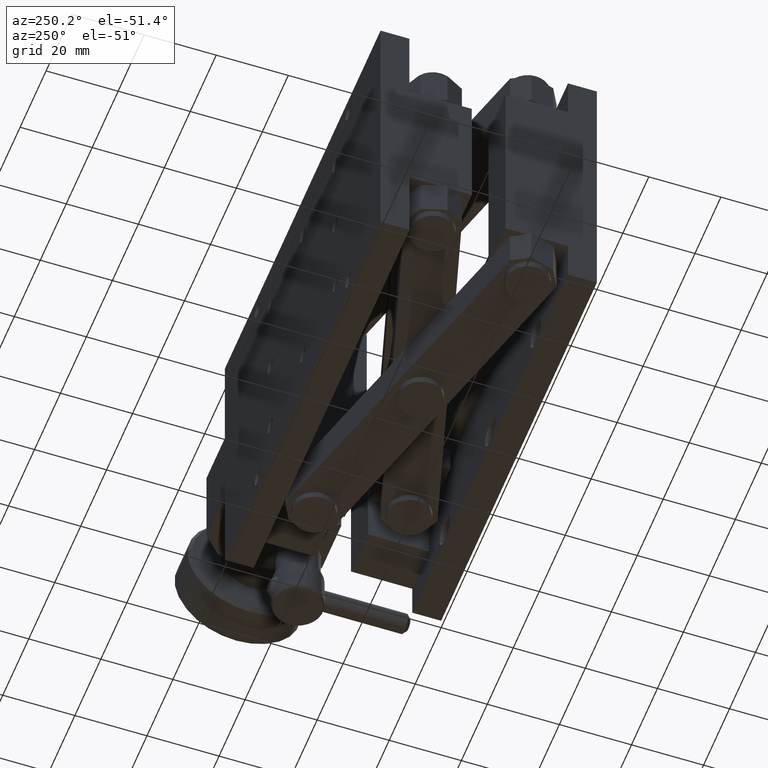
[diagram: clean part render]
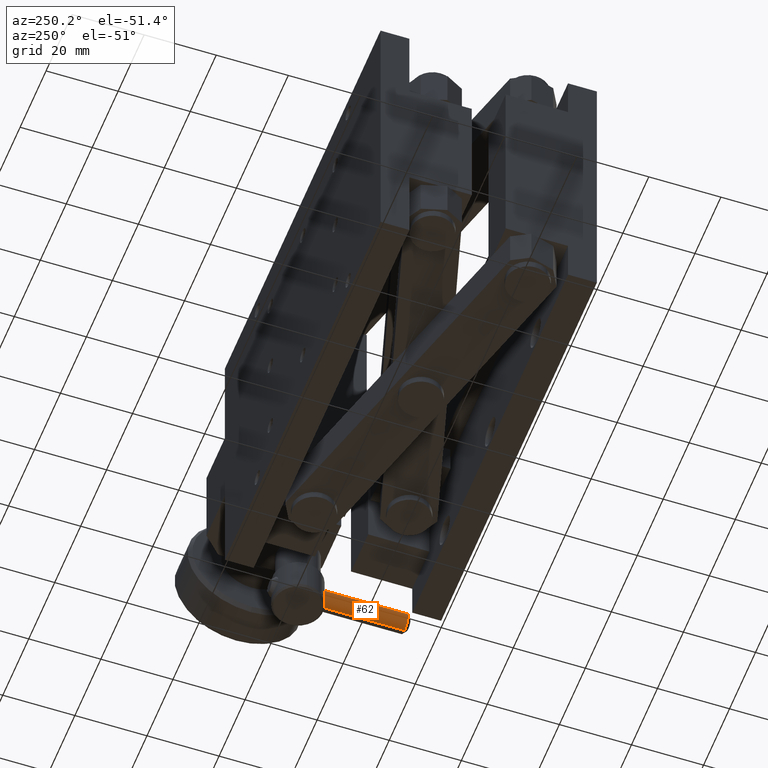
[diagram: same view with one face highlighted and labeled with its STEP entity id]
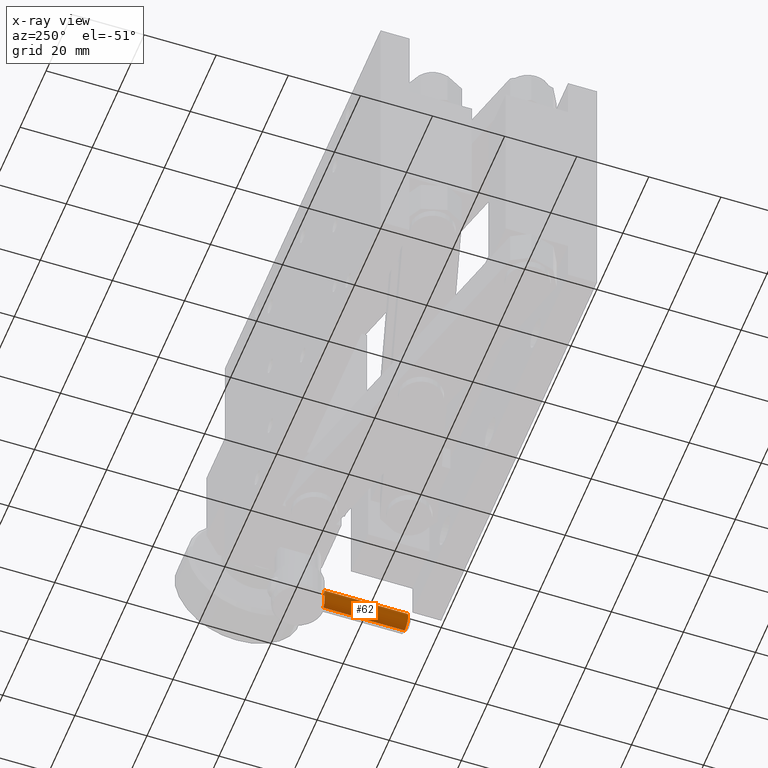
[diagram: x-ray of the same camera — body ghosted, the highlighted face saturated]
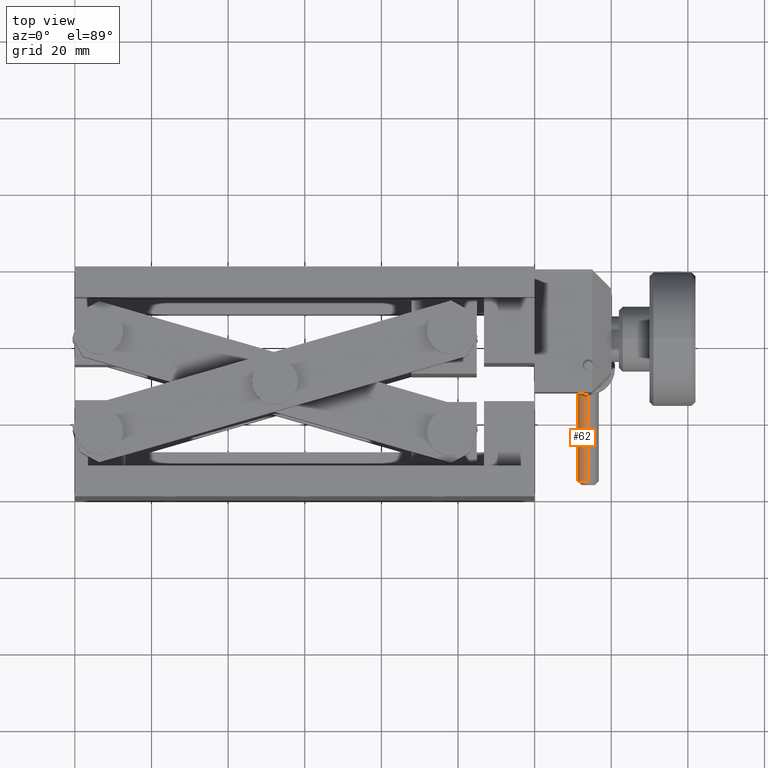
[diagram: same view with one face highlighted and labeled with its STEP entity id]
A machine part, auxiliary view. The second image highlights one B-rep face of the part: STEP entity #62.
The next image is the same camera in x-ray: the body ghosted, the highlighted face saturated — about 0% of this face is hidden behind the body in this view.
A second angle (top view) of the same face is appended — the face is thin or edge-on in the first view.
In plain terms, the highlighted cylindrical surface (edge-blend (fillet) strip) has radius 2.75 mm, axis along (0, 1, 0).
Its self-contained STEP definition (entity closure, byte-faithful):
#5 = ORIENTED_EDGE ( 'NONE', *, *, #2309, .F. ) ;
#34 = CARTESIAN_POINT ( 'NONE',  ( 131.4520946696592603, 28.18009621337878912, -28.03480519323915487 ) ) ;
#62 = ADVANCED_FACE ( 'NONE', ( #4385 ), #257, .T. ) ;
#86 = CARTESIAN_POINT ( 'NONE',  ( 132.7856967656415748, 27.80597728638225874, -29.46775125687473462 ) ) ;
#117 = VERTEX_POINT ( 'NONE', #5208 ) ;
#129 = CARTESIAN_POINT ( 'NONE',  ( 131.2499277050767716, 28.26276185096411453, -27.16858284183991756 ) ) ;
#257 = CYLINDRICAL_SURFACE ( 'NONE', #1843, 2.749999999999999112 ) ;
#460 = CARTESIAN_POINT ( 'NONE',  ( 132.0738225080048096, 27.97015103473142972, -25.03721371761337977 ) ) ;
#509 = CARTESIAN_POINT ( 'NONE',  ( 131.7201221553047219, 28.08160909678486306, -25.46225229958655234 ) ) ;
#556 = CARTESIAN_POINT ( 'NONE',  ( 131.8942586369826699, 28.02371547692384013, -25.22906572936008018 ) ) ;
#592 = CARTESIAN_POINT ( 'NONE',  ( 132.9510393736005938, 27.77896323730705319, -24.45789713840716573 ) ) ;
#634 = CARTESIAN_POINT ( 'NONE',  ( 133.6549179247960240, 27.69992954716099121, -29.74999999999999645 ) ) ;
#636 = CARTESIAN_POINT ( 'NONE',  ( 134.0000000000000000, 4.099929547161000443, -29.75000000000000000 ) ) ;
#725 = CARTESIAN_POINT ( 'NONE',  ( 132.0108707590705706, 27.98846654745112161, -28.89897233768754248 ) ) ;
#765 = CARTESIAN_POINT ( 'NONE',  ( 131.4918434511519649, 28.16462248000823365, -28.13049903181893896 ) ) ;
#817 = CARTESIAN_POINT ( 'NONE',  ( 132.6281677221197413, 27.83523894044937919, -29.38507360773658306 ) ) ;
#1104 = CARTESIAN_POINT ( 'NONE',  ( 131.7438499359701325, 28.07344118582333792, -25.42752687636964026 ) ) ;
#1151 = CARTESIAN_POINT ( 'NONE',  ( 132.4870117338967930, 27.86539354821626446, -24.70361075635511483 ) ) ;
#1193 = CARTESIAN_POINT ( 'NONE',  ( 132.5377088582317811, 27.85432292312141556, -24.67079117445747372 ) ) ;
#1241 = CARTESIAN_POINT ( 'NONE',  ( 133.0953043254009742, 27.75845576170904039, -24.40232947413070974 ) ) ;
#1283 = CARTESIAN_POINT ( 'NONE',  ( 133.3842587851356143, 27.72678448180014499, -24.31829024064948186 ) ) ;
#1363 = CARTESIAN_POINT ( 'NONE',  ( 131.9800755508206862, 27.99759216412832075, -28.86652537250258987 ) ) ;
#1408 = CARTESIAN_POINT ( 'NONE',  ( 131.6917298071590210, 28.09144829273017763, -28.49487627861545747 ) ) ;
#1451 = CARTESIAN_POINT ( 'NONE',  ( 132.8436831453557829, 27.79608365815665039, -29.49517303695770210 ) ) ;
#1756 = VECTOR ( 'NONE', #8563, 1000.000000000000000 ) ;
#1830 = CARTESIAN_POINT ( 'NONE',  ( 132.2086118221192237, 27.93301320286428435, -24.91289823468400044 ) ) ;
#1843 = AXIS2_PLACEMENT_3D ( 'NONE', #5847, #8637, #7867 ) ;
#2005 = CARTESIAN_POINT ( 'NONE',  ( 132.6685680002486265, 27.82763927390788083, -24.59338125033213984 ) ) ;
#2091 = CARTESIAN_POINT ( 'NONE',  ( 131.4300515107786680, 28.18871932683042658, -27.97921501062089078 ) ) ;
#2138 = CARTESIAN_POINT ( 'NONE',  ( 132.8725041041357997, 27.79129105719377080, -29.50838876698932367 ) ) ;
#2162 = ORIENTED_EDGE ( 'NONE', *, *, #7713, .T. ) ;
#2177 = CARTESIAN_POINT ( 'NONE',  ( 131.3389653297981283, 28.22505849311541581, -27.70007411747093329 ) ) ;
#2309 = EDGE_CURVE ( 'NONE', #4903, #117, #3133, .T. ) ;
#2509 = CARTESIAN_POINT ( 'NONE',  ( 132.0935806711252098, 27.96453556085322134, -25.01801739072046971 ) ) ;
#2512 = DIRECTION ( 'NONE',  ( 0.000000000000000000, 1.000000000000000000, 0.000000000000000000 ) ) ;
#2641 = CARTESIAN_POINT ( 'NONE',  ( 133.9999999995139035, 27.69992955969206250, -24.25000002221661077 ) ) ;
#2644 = CARTESIAN_POINT ( 'NONE',  ( 132.9850551363694819, 27.77389752293847280, -24.44411909449768672 ) ) ;
#2692 = CARTESIAN_POINT ( 'NONE',  ( 132.3498278283260561, 27.89694158709915328, -24.79831159137693675 ) ) ;
#2778 = CARTESIAN_POINT ( 'NONE',  ( 132.4426849716217589, 27.87535809292715427, -29.26658250473293776 ) ) ;
#2825 = CARTESIAN_POINT ( 'NONE',  ( 132.3949335513004826, 27.88645705292495691, -29.23307737709227183 ) ) ;
#2870 = CARTESIAN_POINT ( 'NONE',  ( 133.2905527478861814, 27.72689239436929043, -29.68411264247634662 ) ) ;
#2911 = CARTESIAN_POINT ( 'NONE',  ( 131.3791522873205224, 28.20888437052646225, -27.83416700272500677 ) ) ;
#3133 = CIRCLE ( 'NONE', #8272, 2.749999999999999112 ) ;
#3202 = CARTESIAN_POINT ( 'NONE',  ( 131.7192513985776827, 28.08190880898486341, -25.46353502919051692 ) ) ;
#3245 = CARTESIAN_POINT ( 'NONE',  ( 131.5297191722303580, 28.15022548636080302, -25.79086702137669462 ) ) ;
#3297 = CARTESIAN_POINT ( 'NONE',  ( 131.5026996147944374, 28.16052091276931790, -25.84828898239960537 ) ) ;
#3339 = CARTESIAN_POINT ( 'NONE',  ( 133.9999999995139035, 27.69992955969206250, -24.25000002221661077 ) ) ;
#3373 = CARTESIAN_POINT ( 'NONE',  ( 132.1518821077189614, 27.94832751724225162, -24.96343386999355474 ) ) ;
#3425 = CARTESIAN_POINT ( 'NONE',  ( 131.4431804922642186, 28.18357920017508178, -28.01257955993366267 ) ) ;
#3429 = B_SPLINE_CURVE_WITH_KNOTS ( 'NONE', 3,
 ( #3339, #4769, #5408, #1283, #7518, #7469, #1241, #5369, #2644, #6786, #592, #6833, #7430, #2005, #3942, #8171, #1193, #8800, #1151, #5451, #8298, #8254, #2692, #8903, #1830, #3373, #5501, #2509, #460, #6143, #6181, #556, #8988, #7382, #3989, #1104, #4678, #3897, #509, #3202, #6007, #5317, #6739, #3245, #3297, #6055, #6102, #8854, #6908, #9066, #5681, #129, #6313, #8340, #2177, #2911, #6230, #2091, #3425, #34, #8378, #765, #7740, #4902, #9031, #6409, #3606, #1408, #3472, #7696, #7000, #7043, #5723, #7644, #6273, #4215, #1363, #725, #4172, #4811, #7095, #3510, #3560, #6363, #2825, #6960, #2778, #5636, #4988, #7783, #5582, #817, #8428, #86, #1451, #2138, #4946, #4257, #4311, #2870, #634, #8473 ),
 .UNSPECIFIED., .F., .F.,
 ( 4, 2, 2, 1, 1, 2, 2, 2, 2, 1, 1, 2, 2, 2, 2, 1, 2, 2, 2, 2, 1, 1, 2, 2, 2, 2, 1, 2, 2, 2, 2, 2, 1, 1, 2, 2, 2, 2, 1, 1, 2, 2, 2, 2, 1, 2, 2, 2, 2, 1, 1, 2, 2, 2, 2, 1, 2, 2, 4 ),
 ( 0.5002129704373153851, 0.5314496597848680226, 0.5470680044586442303, 0.5548771767955301693, 0.5587817629639754147, 0.5607340560481978153, 0.5626863491324203270, 0.5783046938062094133, 0.5861138661431041230, 0.5900184523115533652, 0.5919707453957759880, 0.5929468919378871883, 0.5939230384799983886, 0.6095413831537754845, 0.6173505554906622006, 0.6212551416591040043, 0.6232074347433249617, 0.6251597278275458081, 0.6407780725013128009, 0.6485872448381977406, 0.6524918310066418758, 0.6544441240908636104, 0.6554202706329748107, 0.6563964171750859000, 0.6720147618488925279, 0.6798239341857970075, 0.6837285203542492473, 0.6856808134384744235, 0.6876331065226994887, 0.7501064852179442077, 0.7813431745655665672, 0.7969615192393786351, 0.8047706915762837809, 0.8086752777447374640, 0.8106275708289635284, 0.8125798639131895929, 0.8281982085869958876, 0.8360073809238988130, 0.8399119670923491654, 0.8418642601765744526, 0.8428404067186880955, 0.8438165532608018493, 0.8594348979346952966, 0.8672440702716435190, 0.8711486564401162980, 0.8731009495243529095, 0.8750532426085892990, 0.8906715872824895186, 0.8984807596194378521, 0.9023853457879139617, 0.9043376388721544590, 0.9053137854142745411, 0.9062899319563946232, 0.9219082766303261511, 0.9297174489672920261, 0.9336220351357727987, 0.9355743282200157385, 0.9375266213042585672, 1.000000000000000000 ),
 .UNSPECIFIED. ) ;
#3472 = CARTESIAN_POINT ( 'NONE',  ( 131.7018994042104509, 28.08791294258546500, -28.51038806913074097 ) ) ;
#3510 = CARTESIAN_POINT ( 'NONE',  ( 132.2104634581718017, 27.93228106612918893, -29.08998362584355846 ) ) ;
#3512 = ORIENTED_EDGE ( 'NONE', *, *, #8977, .T. ) ;
#3560 = CARTESIAN_POINT ( 'NONE',  ( 132.3149722279810021, 27.90578102220570500, -29.17374666307573250 ) ) ;
#3606 = CARTESIAN_POINT ( 'NONE',  ( 131.6685891735991163, 28.09954873453279589, -28.45878856874529816 ) ) ;
#3897 = CARTESIAN_POINT ( 'NONE',  ( 131.7238340518092912, 28.08032927856658745, -25.45676328673904365 ) ) ;
#3918 = ORIENTED_EDGE ( 'NONE', *, *, #8838, .F. ) ;
#3942 = CARTESIAN_POINT ( 'NONE',  ( 132.6284887292623580, 27.83551396700727310, -24.61595656071508031 ) ) ;
#3989 = CARTESIAN_POINT ( 'NONE',  ( 131.7578631464558896, 28.06865527635841318, -25.40763529120324904 ) ) ;
#4124 = LINE ( 'NONE', #636, #6451 ) ;
#4172 = CARTESIAN_POINT ( 'NONE',  ( 132.0319856024780165, 27.98225905833945504, -28.92084627379950845 ) ) ;
#4213 = CARTESIAN_POINT ( 'NONE',  ( 134.0000000000000000, 5.099929547161000443, -24.25000000000000000 ) ) ;
#4215 = CARTESIAN_POINT ( 'NONE',  ( 131.9518308421540382, 28.00616092983457861, -28.83527319222446295 ) ) ;
#4257 = CARTESIAN_POINT ( 'NONE',  ( 132.9199964967963865, 27.78374032618047451, -29.52907077859753926 ) ) ;
#4311 = CARTESIAN_POINT ( 'NONE',  ( 132.9279286184666944, 27.78250326673640203, -29.53245035964579657 ) ) ;
#4385 = FACE_OUTER_BOUND ( 'NONE', #6983, .T. ) ;
#4395 = LINE ( 'NONE', #8608, #1756 ) ;
#4431 = CARTESIAN_POINT ( 'NONE',  ( 134.0000000000000000, 5.099929547161000443, -27.00000000000000000 ) ) ;
#4678 = CARTESIAN_POINT ( 'NONE',  ( 131.7295414835613485, 28.07836222849868335, -25.44835543243531362 ) ) ;
#4765 = VERTEX_POINT ( 'NONE', #2641 ) ;
#4769 = CARTESIAN_POINT ( 'NONE',  ( 133.8277454518222100, 27.69993321502434469, -24.25000000003046097 ) ) ;
#4811 = CARTESIAN_POINT ( 'NONE',  ( 132.0438800654069667, 27.97879084715109599, -28.93294999661246081 ) ) ;
#4902 = CARTESIAN_POINT ( 'NONE',  ( 131.5907418737409387, 28.12751168215617525, -28.32664764177509653 ) ) ;
#4903 = VERTEX_POINT ( 'NONE', #4213 ) ;
#4946 = CARTESIAN_POINT ( 'NONE',  ( 132.9010393457637917, 27.78672977595580562, -29.52089112230750345 ) ) ;
#4988 = CARTESIAN_POINT ( 'NONE',  ( 132.4600364615144485, 27.87142175003825173, -29.27838312779476126 ) ) ;
#5119 = VERTEX_POINT ( 'NONE', #8015 ) ;
#5208 = CARTESIAN_POINT ( 'NONE',  ( 134.0000000000000000, 5.099929547161000443, -29.75000000000000000 ) ) ;
#5317 = CARTESIAN_POINT ( 'NONE',  ( 131.6121027070635137, 28.11960530457561447, -25.63307664520782936 ) ) ;
#5369 = CARTESIAN_POINT ( 'NONE',  ( 133.0180590082014760, 27.76909985237573153, -24.43109576474502376 ) ) ;
#5408 = CARTESIAN_POINT ( 'NONE',  ( 133.6509612192195391, 27.70664739776875152, -24.26623156836110695 ) ) ;
#5451 = CARTESIAN_POINT ( 'NONE',  ( 132.4768606855309088, 27.86764793251599315, -24.71033109808150741 ) ) ;
#5501 = CARTESIAN_POINT ( 'NONE',  ( 132.1230357133990481, 27.95624002564066402, -24.98983284849235886 ) ) ;
#5582 = CARTESIAN_POINT ( 'NONE',  ( 132.5478011648557981, 27.85172032528216945, -29.33732357339964025 ) ) ;
#5636 = CARTESIAN_POINT ( 'NONE',  ( 132.4531362273003765, 27.87298335250324399, -29.27370399251843480 ) ) ;
#5681 = CARTESIAN_POINT ( 'NONE',  ( 131.2501453431854941, 28.26267482330273140, -26.65930868243493634 ) ) ;
#5723 = CARTESIAN_POINT ( 'NONE',  ( 131.7845577004251538, 28.05934646151780854, -28.63164104900184270 ) ) ;
#5847 = CARTESIAN_POINT ( 'NONE',  ( 134.0000000000000000, 4.099929547161000443, -27.00000000000000000 ) ) ;
#6007 = CARTESIAN_POINT ( 'NONE',  ( 131.6602950225324946, 28.10226011352143871, -25.55147982117679817 ) ) ;
#6055 = CARTESIAN_POINT ( 'NONE',  ( 131.4897211469843228, 28.16549903429342550, -25.87673058264443782 ) ) ;
#6102 = CARTESIAN_POINT ( 'NONE',  ( 131.4775009586933550, 28.17022276829736072, -25.90473713700748348 ) ) ;
#6143 = CARTESIAN_POINT ( 'NONE',  ( 132.0647713699508756, 27.97274466207454680, -25.04612163667675162 ) ) ;
#6181 = CARTESIAN_POINT ( 'NONE',  ( 131.9641426310058705, 28.00186708550701198, -25.14694377756935495 ) ) ;
#6230 = CARTESIAN_POINT ( 'NONE',  ( 131.4011042305594685, 28.20012248091930118, -27.90120816389947933 ) ) ;
#6273 = CARTESIAN_POINT ( 'NONE',  ( 131.8985313198946585, 28.02255599328587721, -28.77460636298118146 ) ) ;
#6313 = CARTESIAN_POINT ( 'NONE',  ( 131.2656117821014163, 28.25559269151598585, -27.34407613074638377 ) ) ;
#6363 = CARTESIAN_POINT ( 'NONE',  ( 132.3481324416800078, 27.89763752439509048, -29.19893726082822027 ) ) ;
#6409 = CARTESIAN_POINT ( 'NONE',  ( 131.6497447146803381, 28.10623704144641266, -28.42806249776035443 ) ) ;
#6451 = VECTOR ( 'NONE', #2512, 1000.000000000000000 ) ;
#6739 = CARTESIAN_POINT ( 'NONE',  ( 131.5491490829078600, 28.14290962427477538, -25.75186618623596502 ) ) ;
#6786 = CARTESIAN_POINT ( 'NONE',  ( 132.9630773833499404, 27.77714839607360631, -24.45295626924060173 ) ) ;
#6833 = CARTESIAN_POINT ( 'NONE',  ( 132.8657776006673998, 27.79200602546415055, -24.49345212558037232 ) ) ;
#6908 = CARTESIAN_POINT ( 'NONE',  ( 131.4662374883116058, 28.17458899690205243, -25.93103240987218783 ) ) ;
#6960 = CARTESIAN_POINT ( 'NONE',  ( 132.4176008353207976, 27.88112551100134340, -29.24923547184648953 ) ) ;
#6983 = EDGE_LOOP ( 'NONE', ( #5, #3512, #2162, #3918 ) ) ;
#7000 = CARTESIAN_POINT ( 'NONE',  ( 131.7135092060114516, 28.08389127241470362, -28.52789737263023895 ) ) ;
#7043 = CARTESIAN_POINT ( 'NONE',  ( 131.7442162081067636, 28.07328688786637372, -28.57373306160492277 ) ) ;
#7095 = CARTESIAN_POINT ( 'NONE',  ( 132.1340071042900775, 27.95270716273365252, -29.02322201940781099 ) ) ;
#7134 = DIRECTION ( 'NONE',  ( 0.000000000000000000, -1.000000000000000000, 0.000000000000000000 ) ) ;
#7382 = CARTESIAN_POINT ( 'NONE',  ( 131.7883712005580037, 28.05832629358047114, -25.36524919426629765 ) ) ;
#7430 = CARTESIAN_POINT ( 'NONE',  ( 132.7877480308399356, 27.80526193362744181, -24.52997063415677559 ) ) ;
#7469 = CARTESIAN_POINT ( 'NONE',  ( 133.1618366886860088, 27.75027592510283370, -24.38043220756008012 ) ) ;
#7518 = CARTESIAN_POINT ( 'NONE',  ( 133.2951184365737163, 27.73517447812974623, -24.34025290600257208 ) ) ;
#7644 = CARTESIAN_POINT ( 'NONE',  ( 131.8672478769530017, 28.03249607830509404, -28.73662104545627116 ) ) ;
#7696 = CARTESIAN_POINT ( 'NONE',  ( 131.7087356828034501, 28.08554187977134120, -28.52073873380106050 ) ) ;
#7713 = EDGE_CURVE ( 'NONE', #4765, #5119, #3429, .T. ) ;
#7740 = CARTESIAN_POINT ( 'NONE',  ( 131.5276633458776985, 28.15086585758090720, -28.20752896701245049 ) ) ;
#7783 = CARTESIAN_POINT ( 'NONE',  ( 132.4619919848146878, 27.87097954569963321, -29.27970794398076748 ) ) ;
#7867 = DIRECTION ( 'NONE',  ( 0.000000000000000000, 0.000000000000000000, -1.000000000000000000 ) ) ;
#8015 = CARTESIAN_POINT ( 'NONE',  ( 134.0000000000000000, 27.69992954716100186, -29.75000000000000355 ) ) ;
#8171 = CARTESIAN_POINT ( 'NONE',  ( 132.5680259064534710, 27.84794937616522503, -24.65212824733734820 ) ) ;
#8254 = CARTESIAN_POINT ( 'NONE',  ( 132.4130151166086478, 27.88196999372980756, -24.75315788798699401 ) ) ;
#8272 = AXIS2_PLACEMENT_3D ( 'NONE', #4431, #7134, #8602 ) ;
#8298 = CARTESIAN_POINT ( 'NONE',  ( 132.4710058117946403, 27.86895665614845186, -24.71424112177739829 ) ) ;
#8340 = CARTESIAN_POINT ( 'NONE',  ( 131.3171331286170016, 28.23404169934093133, -27.61066945061824995 ) ) ;
#8378 = CARTESIAN_POINT ( 'NONE',  ( 131.4573194609486677, 28.17805924890117453, -28.04755683482111195 ) ) ;
#8428 = CARTESIAN_POINT ( 'NONE',  ( 132.7465790344130880, 27.81298427359915593, -29.44814947690415252 ) ) ;
#8473 = CARTESIAN_POINT ( 'NONE',  ( 134.0000000000000000, 27.69992954716100186, -29.75000000000000355 ) ) ;
#8563 = DIRECTION ( 'NONE',  ( 0.000000000000000000, 1.000000000000000000, 0.000000000000000000 ) ) ;
#8602 = DIRECTION ( 'NONE',  ( 0.000000000000000000, 0.000000000000000000, -1.000000000000000000 ) ) ;
#8608 = CARTESIAN_POINT ( 'NONE',  ( 134.0000000000000000, 4.099929547161000443, -24.25000000000000000 ) ) ;
#8637 = DIRECTION ( 'NONE',  ( 0.000000000000000000, 1.000000000000000000, 0.000000000000000000 ) ) ;
#8800 = CARTESIAN_POINT ( 'NONE',  ( 132.5022332500646201, 27.86203145206378551, -24.69360630433957127 ) ) ;
#8838 = EDGE_CURVE ( 'NONE', #117, #5119, #4124, .T. ) ;
#8854 = CARTESIAN_POINT ( 'NONE',  ( 131.4695183944929227, 28.17331539373992655, -25.92330830938744768 ) ) ;
#8903 = CARTESIAN_POINT ( 'NONE',  ( 132.2451431033211122, 27.92348459650412451, -24.88222350485550649 ) ) ;
#8977 = EDGE_CURVE ( 'NONE', #4903, #4765, #4395, .T. ) ;
#8988 = CARTESIAN_POINT ( 'NONE',  ( 131.8120135578129180, 28.05043075326440771, -25.33351296179116829 ) ) ;
#9031 = CARTESIAN_POINT ( 'NONE',  ( 131.6133264145588555, 28.11927375005063823, -28.36694506520533920 ) ) ;
#9066 = CARTESIAN_POINT ( 'NONE',  ( 131.3138099378928132, 28.23389254418863459, -26.29678060578030241 ) ) ;